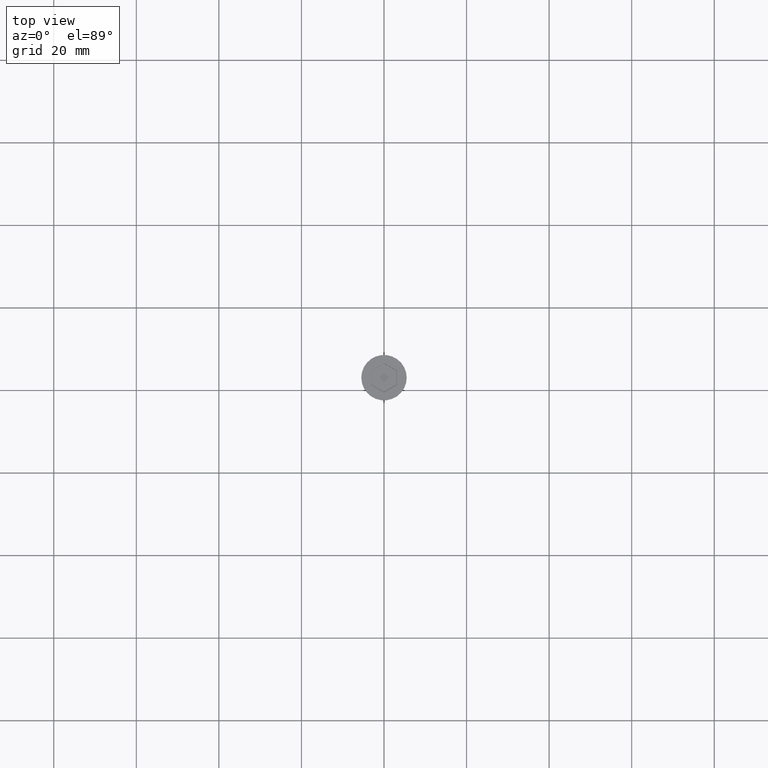
[diagram: clean part render]
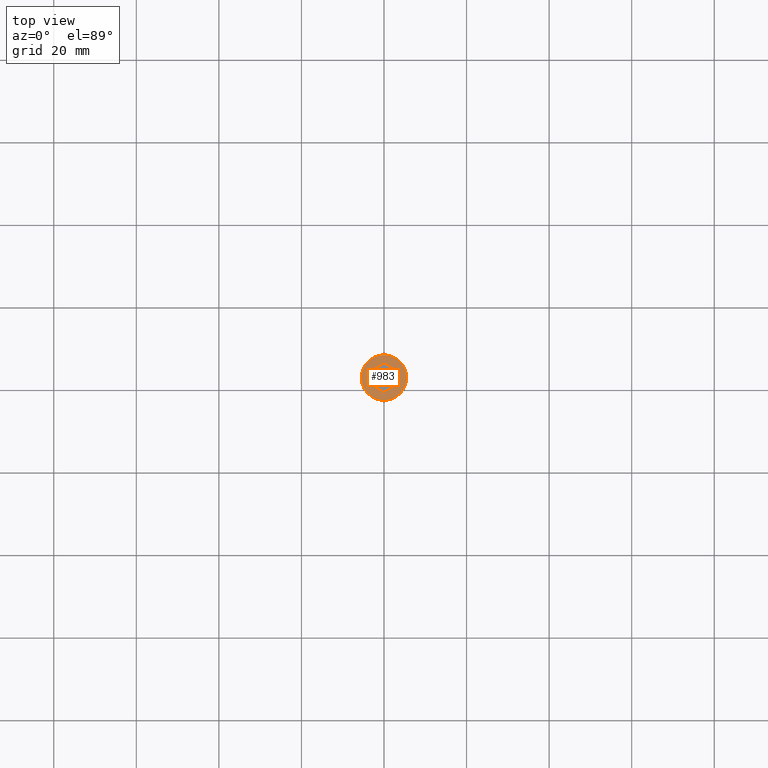
[diagram: same view with one face highlighted and labeled with its STEP entity id]
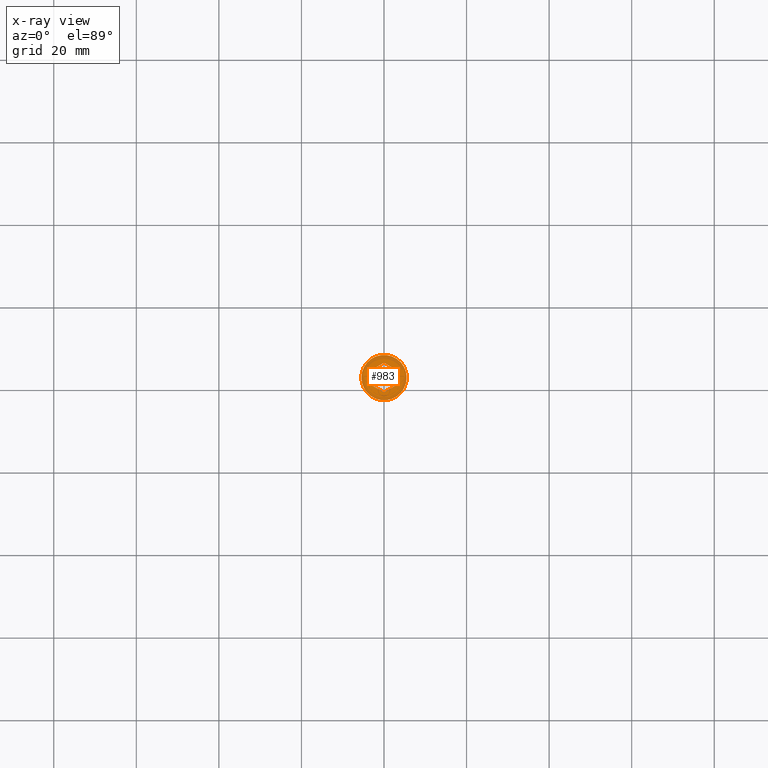
[diagram: x-ray of the same camera — body ghosted, the highlighted face saturated]
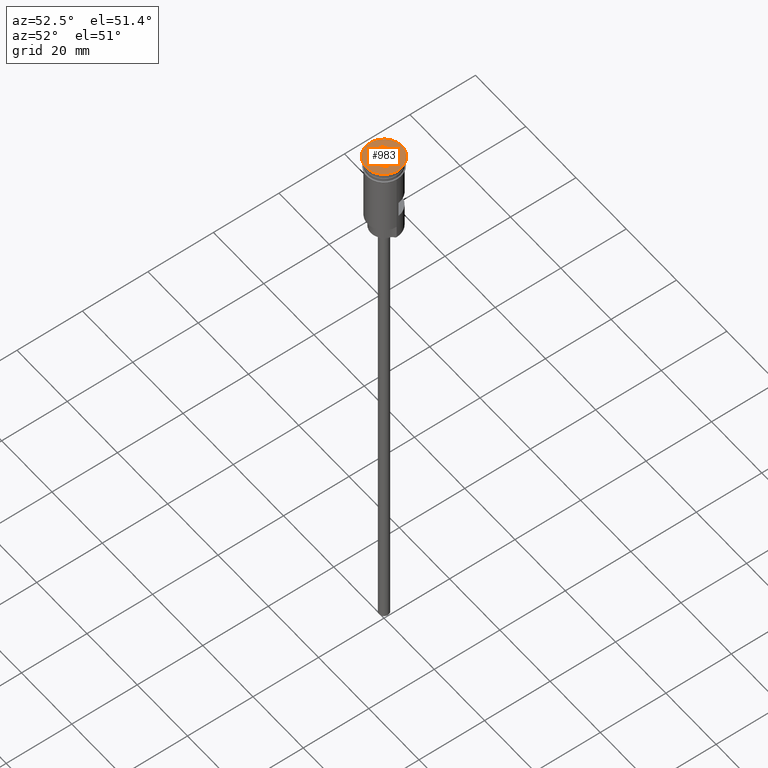
[diagram: same view with one face highlighted and labeled with its STEP entity id]
A machine part, top view. The second image highlights one B-rep face of the part: STEP entity #983.
The next image is the same camera in x-ray: the body ghosted, the highlighted face saturated — about 0% of this face is hidden behind the body in this view.
A second angle (auxiliary view) of the same face is appended — the face is thin or edge-on in the first view.
In plain terms, the highlighted planar face has unit normal (0, -0, 1).
Its self-contained STEP definition (entity closure, byte-faithful):
#21 = VERTEX_POINT ( 'NONE', #689 ) ;
#48 = VERTEX_POINT ( 'NONE', #1102 ) ;
#49 = ORIENTED_EDGE ( 'NONE', *, *, #1557, .T. ) ;
#79 = CIRCLE ( 'NONE', #270, 5.500000000000000000 ) ;
#108 = EDGE_CURVE ( 'NONE', #21, #48, #657, .T. ) ;
#119 = CARTESIAN_POINT ( 'NONE',  ( 0.000000000000000000, 0.000000000000000000, 0.000000000000000000 ) ) ;
#123 = ORIENTED_EDGE ( 'NONE', *, *, #1040, .T. ) ;
#136 = EDGE_CURVE ( 'NONE', #48, #285, #1043, .T. ) ;
#178 = LINE ( 'NONE', #315, #1320 ) ;
#205 = CARTESIAN_POINT ( 'NONE',  ( 0.04999999999999141936, -3.550704155516182237, 0.000000000000000000 ) ) ;
#229 = DIRECTION ( 'NONE',  ( -0.8660254037844387076, 0.4999999999999998335, 0.000000000000000000 ) ) ;
#231 = DIRECTION ( 'NONE',  ( 1.000000000000000000, 0.000000000000000000, 0.000000000000000000 ) ) ;
#270 = AXIS2_PLACEMENT_3D ( 'NONE', #1085, #716, #231 ) ;
#285 = VERTEX_POINT ( 'NONE', #1058 ) ;
#292 = VERTEX_POINT ( 'NONE', #340 ) ;
#311 = VERTEX_POINT ( 'NONE', #1215 ) ;
#315 = CARTESIAN_POINT ( 'NONE',  ( 3.049999999999991829, 1.818653347947307708, 0.000000000000000000 ) ) ;
#340 = CARTESIAN_POINT ( 'NONE',  ( 5.500000000000000000, 0.000000000000000000, 0.000000000000000000 ) ) ;
#347 = DIRECTION ( 'NONE',  ( 1.000000000000000000, 0.000000000000000000, 0.000000000000000000 ) ) ;
#355 = VECTOR ( 'NONE', #1390, 1000.000000000000000 ) ;
#408 = ORIENTED_EDGE ( 'NONE', *, *, #1107, .T. ) ;
#429 = CARTESIAN_POINT ( 'NONE',  ( 3.099999999999982769, -1.732050807568876083, 0.000000000000000000 ) ) ;
#440 = LINE ( 'NONE', #902, #1588 ) ;
#460 = DIRECTION ( 'NONE',  ( 0.8660254037844387076, 0.4999999999999998890, 0.000000000000000000 ) ) ;
#572 = PLANE ( 'NONE',  #926 ) ;
#586 = DIRECTION ( 'NONE',  ( -0.8660254037844385966, -0.5000000000000001110, 0.000000000000000000 ) ) ;
#620 = LINE ( 'NONE', #205, #1486 ) ;
#644 = EDGE_CURVE ( 'NONE', #772, #292, #79, .T. ) ;
#654 = VECTOR ( 'NONE', #460, 1000.000000000000000 ) ;
#657 = LINE ( 'NONE', #1495, #1445 ) ;
#658 = CARTESIAN_POINT ( 'NONE',  ( -5.500000000000000000, 6.735557395310442023E-16, 0.000000000000000000 ) ) ;
#664 = VERTEX_POINT ( 'NONE', #975 ) ;
#689 = CARTESIAN_POINT ( 'NONE',  ( -3.099999999999983213, -1.789785834487829241, 0.000000000000000000 ) ) ;
#697 = CARTESIAN_POINT ( 'NONE',  ( 3.099999999999982769, -1.789785834487828353, 0.000000000000000000 ) ) ;
#716 = DIRECTION ( 'NONE',  ( -0.000000000000000000, -0.000000000000000000, 1.000000000000000000 ) ) ;
#772 = VERTEX_POINT ( 'NONE', #658 ) ;
#807 = CARTESIAN_POINT ( 'NONE',  ( 0.000000000000000000, 0.000000000000000000, 0.000000000000000000 ) ) ;
#841 = ORIENTED_EDGE ( 'NONE', *, *, #1316, .T. ) ;
#867 = ORIENTED_EDGE ( 'NONE', *, *, #883, .T. ) ;
#875 = LINE ( 'NONE', #429, #355 ) ;
#883 = EDGE_CURVE ( 'NONE', #664, #1416, #875, .T. ) ;
#896 = ORIENTED_EDGE ( 'NONE', *, *, #108, .T. ) ;
#902 = CARTESIAN_POINT ( 'NONE',  ( -3.049999999999991385, -1.818653347947305932, 0.000000000000000000 ) ) ;
#925 = EDGE_LOOP ( 'NONE', ( #896, #1325, #123, #867, #49, #841 ) ) ;
#926 = AXIS2_PLACEMENT_3D ( 'NONE', #807, #1028, #1431 ) ;
#938 = DIRECTION ( 'NONE',  ( -0.000000000000000000, -0.000000000000000000, 1.000000000000000000 ) ) ;
#975 = CARTESIAN_POINT ( 'NONE',  ( 3.099999999999983213, 1.789785834487831462, 0.000000000000000000 ) ) ;
#983 = ADVANCED_FACE ( 'NONE', ( #1020, #1400 ), #572, .T. ) ;
#1003 = ORIENTED_EDGE ( 'NONE', *, *, #644, .T. ) ;
#1009 = EDGE_LOOP ( 'NONE', ( #408, #1003 ) ) ;
#1020 = FACE_BOUND ( 'NONE', #925, .T. ) ;
#1028 = DIRECTION ( 'NONE',  ( 0.000000000000000000, -0.000000000000000000, 1.000000000000000000 ) ) ;
#1040 = EDGE_CURVE ( 'NONE', #285, #664, #178, .T. ) ;
#1043 = LINE ( 'NONE', #1425, #654 ) ;
#1058 = CARTESIAN_POINT ( 'NONE',  ( 6.103073414120078086E-16, 3.579571668975660259, 0.000000000000000000 ) ) ;
#1085 = CARTESIAN_POINT ( 'NONE',  ( 0.000000000000000000, 0.000000000000000000, 0.000000000000000000 ) ) ;
#1102 = CARTESIAN_POINT ( 'NONE',  ( -3.099999999999983213, 1.789785834487829908, 0.000000000000000000 ) ) ;
#1107 = EDGE_CURVE ( 'NONE', #292, #772, #1166, .T. ) ;
#1142 = DIRECTION ( 'NONE',  ( 0.000000000000000000, 1.000000000000000000, 0.000000000000000000 ) ) ;
#1166 = CIRCLE ( 'NONE', #1245, 5.500000000000000000 ) ;
#1215 = CARTESIAN_POINT ( 'NONE',  ( -1.958864205101993824E-16, -3.579571668975658927, 0.000000000000000000 ) ) ;
#1245 = AXIS2_PLACEMENT_3D ( 'NONE', #119, #938, #347 ) ;
#1289 = DIRECTION ( 'NONE',  ( 0.8660254037844388186, -0.4999999999999997780, 0.000000000000000000 ) ) ;
#1316 = EDGE_CURVE ( 'NONE', #311, #21, #440, .T. ) ;
#1320 = VECTOR ( 'NONE', #1289, 1000.000000000000114 ) ;
#1325 = ORIENTED_EDGE ( 'NONE', *, *, #136, .T. ) ;
#1390 = DIRECTION ( 'NONE',  ( -1.251928832280966188E-16, -1.000000000000000000, 0.000000000000000000 ) ) ;
#1400 = FACE_OUTER_BOUND ( 'NONE', #1009, .T. ) ;
#1416 = VERTEX_POINT ( 'NONE', #697 ) ;
#1425 = CARTESIAN_POINT ( 'NONE',  ( -0.04999999999999187039, 3.550704155516183125, 0.000000000000000000 ) ) ;
#1431 = DIRECTION ( 'NONE',  ( 1.000000000000000000, 0.000000000000000000, 0.000000000000000000 ) ) ;
#1445 = VECTOR ( 'NONE', #1142, 1000.000000000000000 ) ;
#1486 = VECTOR ( 'NONE', #586, 1000.000000000000114 ) ;
#1495 = CARTESIAN_POINT ( 'NONE',  ( -3.099999999999983213, 1.732050807568876971, 0.000000000000000000 ) ) ;
#1557 = EDGE_CURVE ( 'NONE', #1416, #311, #620, .T. ) ;
#1588 = VECTOR ( 'NONE', #229, 1000.000000000000000 ) ;